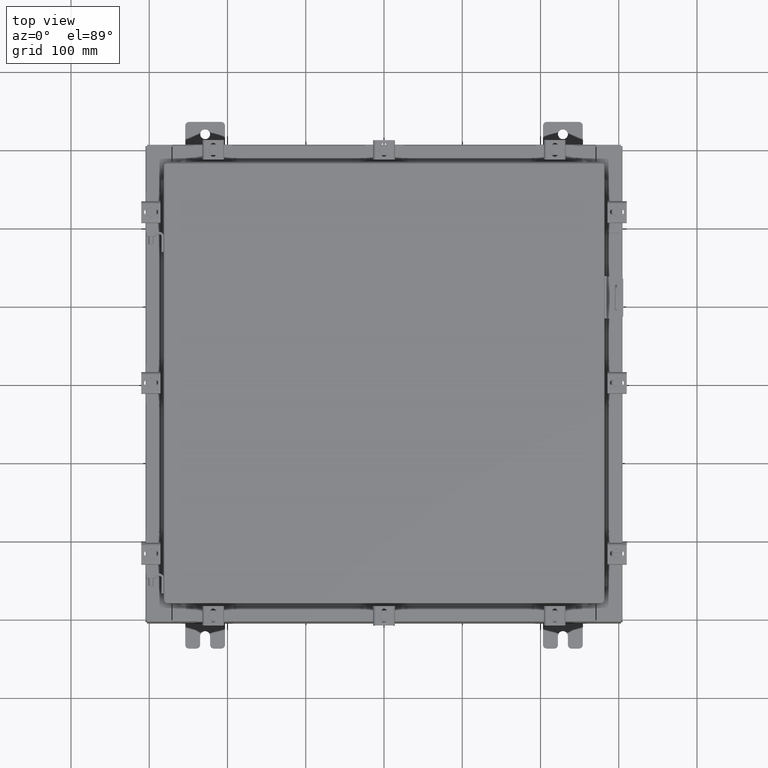
[diagram: clean part render]
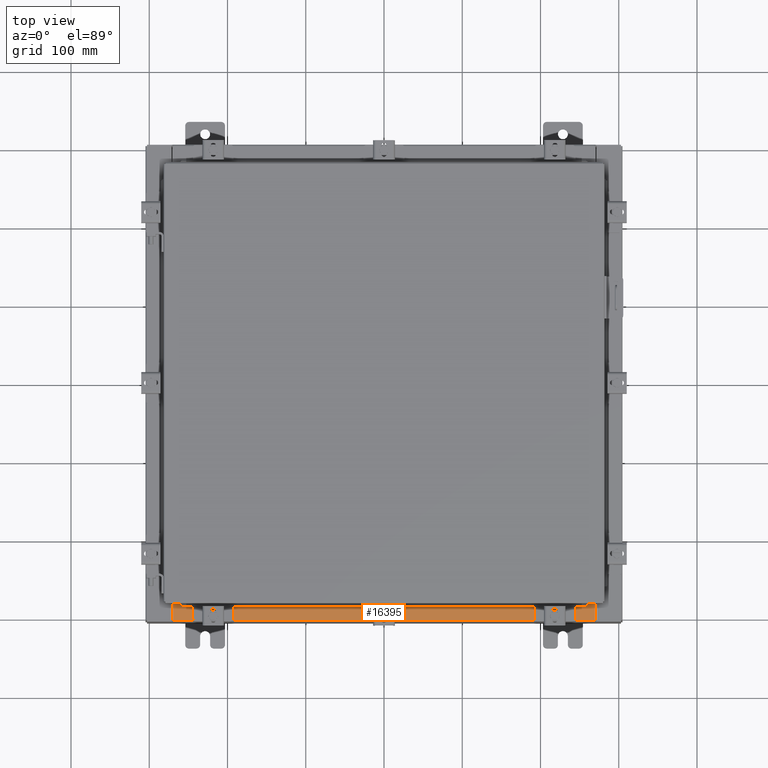
[diagram: same view with one face highlighted and labeled with its STEP entity id]
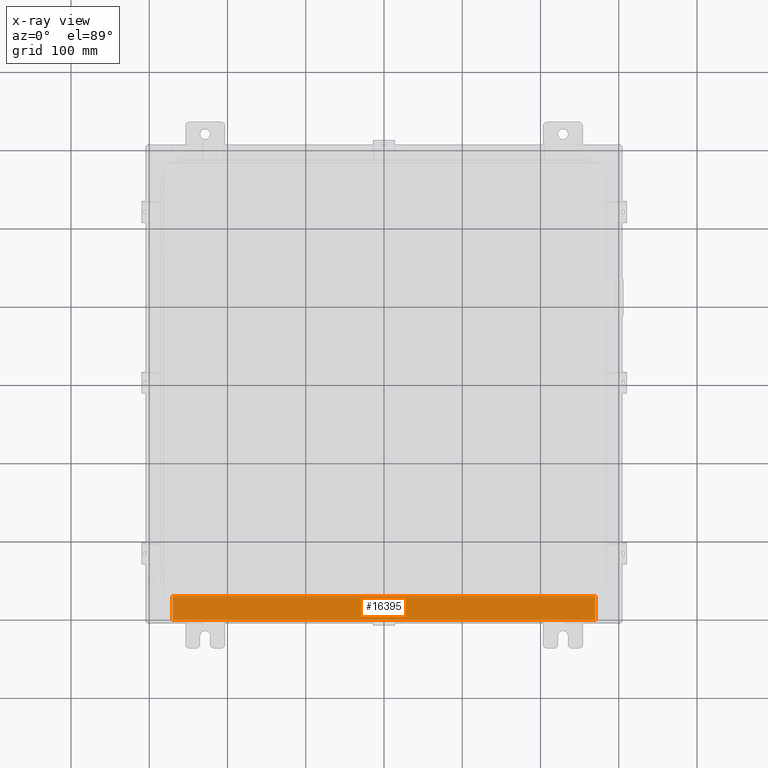
[diagram: x-ray of the same camera — body ghosted, the highlighted face saturated]
A machine part, top view. The second image highlights one B-rep face of the part: STEP entity #16395.
The next image is the same camera in x-ray: the body ghosted, the highlighted face saturated — about 0% of this face is hidden behind the body in this view.
In plain terms, the highlighted planar face has unit normal (-0, -0, 1).
Its self-contained STEP definition (entity closure, byte-faithful):
#77 = FACE_OUTER_BOUND ( 'NONE', #18658, .T. ) ;
#400 = VECTOR ( 'NONE', #15596, 39.37007874015748100 ) ;
#871 = LINE ( 'NONE', #13496, #13668 ) ;
#1121 = LINE ( 'NONE', #3536, #10933 ) ;
#1880 = ORIENTED_EDGE ( 'NONE', *, *, #8733, .T. ) ;
#1910 = VECTOR ( 'NONE', #5881, 39.37007874015748100 ) ;
#2184 = EDGE_CURVE ( 'NONE', #4933, #10271, #2451, .T. ) ;
#2451 = LINE ( 'NONE', #11421, #1910 ) ;
#3536 = CARTESIAN_POINT ( 'NONE',  ( -2.252313287748515100E-018, -0.08770000000000000000, 3.000000000000001300 ) ) ;
#3982 = ORIENTED_EDGE ( 'NONE', *, *, #8532, .F. ) ;
#4183 = ORIENTED_EDGE ( 'NONE', *, *, #2184, .F. ) ;
#4351 = DIRECTION ( 'NONE',  ( 0.0000000000000000000, 3.566381192773190000E-015, 1.000000000000000000 ) ) ;
#4933 = VERTEX_POINT ( 'NONE', #6663 ) ;
#5881 = DIRECTION ( 'NONE',  ( -0.0000000000000000000, 1.000000000000000000, -3.566381192773190000E-015 ) ) ;
#6026 = PLANE ( 'NONE',  #9938 ) ;
#6663 = CARTESIAN_POINT ( 'NONE',  ( -10.63720000000000200, -1.287299999999999200, 3.000000000000005300 ) ) ;
#6822 = CARTESIAN_POINT ( 'NONE',  ( 10.63720000000000200, -1.300299999999999800, 3.000000000000005300 ) ) ;
#8532 = EDGE_CURVE ( 'NONE', #20770, #4933, #871, .T. ) ;
#8733 = EDGE_CURVE ( 'NONE', #14682, #10271, #1121, .T. ) ;
#8808 = DIRECTION ( 'NONE',  ( -1.000000000000000000, 2.568202152506545800E-017, -9.159187855938968600E-032 ) ) ;
#9264 = CARTESIAN_POINT ( 'NONE',  ( 10.63720000000000200, -1.287299999999999900, 3.000000000000005300 ) ) ;
#9938 = AXIS2_PLACEMENT_3D ( 'NONE', #21766, #4351, #16547 ) ;
#10271 = VERTEX_POINT ( 'NONE', #17225 ) ;
#10933 = VECTOR ( 'NONE', #8808, 39.37007874015748100 ) ;
#11421 = CARTESIAN_POINT ( 'NONE',  ( -10.63720000000000200, -0.07469999999999973900, 3.000000000000000900 ) ) ;
#13496 = CARTESIAN_POINT ( 'NONE',  ( 10.63720000000000400, -1.287299999999999900, 3.000000000000005300 ) ) ;
#13668 = VECTOR ( 'NONE', #15228, 39.37007874015748100 ) ;
#14087 = EDGE_CURVE ( 'NONE', #14682, #20770, #18382, .T. ) ;
#14682 = VERTEX_POINT ( 'NONE', #18933 ) ;
#15228 = DIRECTION ( 'NONE',  ( -1.000000000000000000, 0.0000000000000000000, 0.0000000000000000000 ) ) ;
#15596 = DIRECTION ( 'NONE',  ( -0.0000000000000000000, -1.000000000000000000, 3.566381192773190000E-015 ) ) ;
#16395 = ADVANCED_FACE ( 'NONE', ( #77 ), #6026, .T. ) ;
#16547 = DIRECTION ( 'NONE',  ( 0.0000000000000000000, -1.000000000000000000, 3.566381192773190000E-015 ) ) ;
#17225 = CARTESIAN_POINT ( 'NONE',  ( -10.63720000000000200, -0.08770000000000000000, 3.000000000000000900 ) ) ;
#18382 = LINE ( 'NONE', #6822, #400 ) ;
#18658 = EDGE_LOOP ( 'NONE', ( #4183, #3982, #20790, #1880 ) ) ;
#18933 = CARTESIAN_POINT ( 'NONE',  ( 10.63720000000000400, -0.08769999999999965300, 3.000000000000000900 ) ) ;
#20770 = VERTEX_POINT ( 'NONE', #9264 ) ;
#20790 = ORIENTED_EDGE ( 'NONE', *, *, #14087, .F. ) ;
#21766 = CARTESIAN_POINT ( 'NONE',  ( 0.0000000000000000000, 1.069354855923099900E-014, 3.000000000000000900 ) ) ;